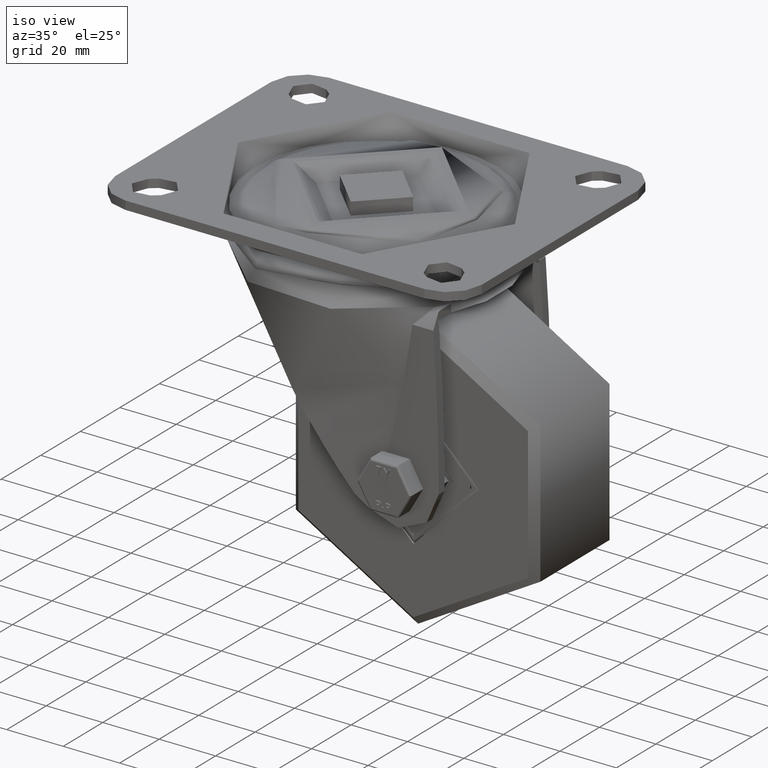
[diagram: clean part render]
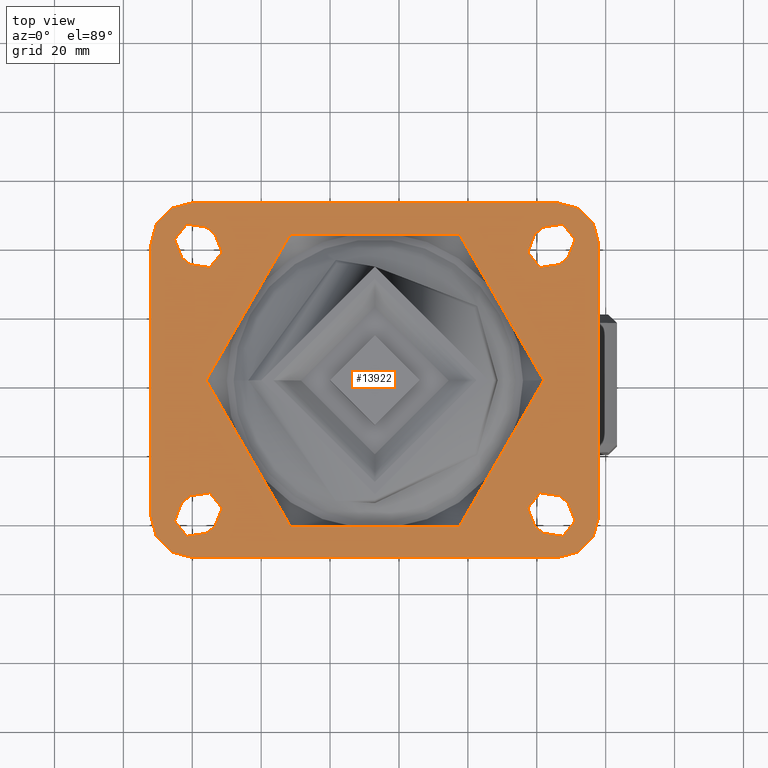
[diagram: tour spotlight — one face highlighted and labeled with its STEP entity id]
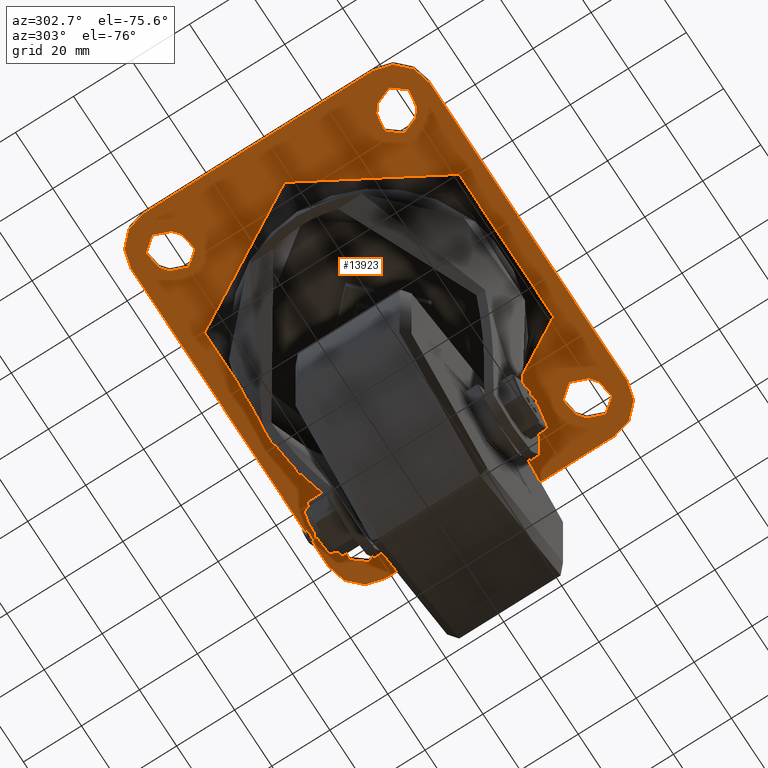
[diagram: tour spotlight — one face highlighted and labeled with its STEP entity id]
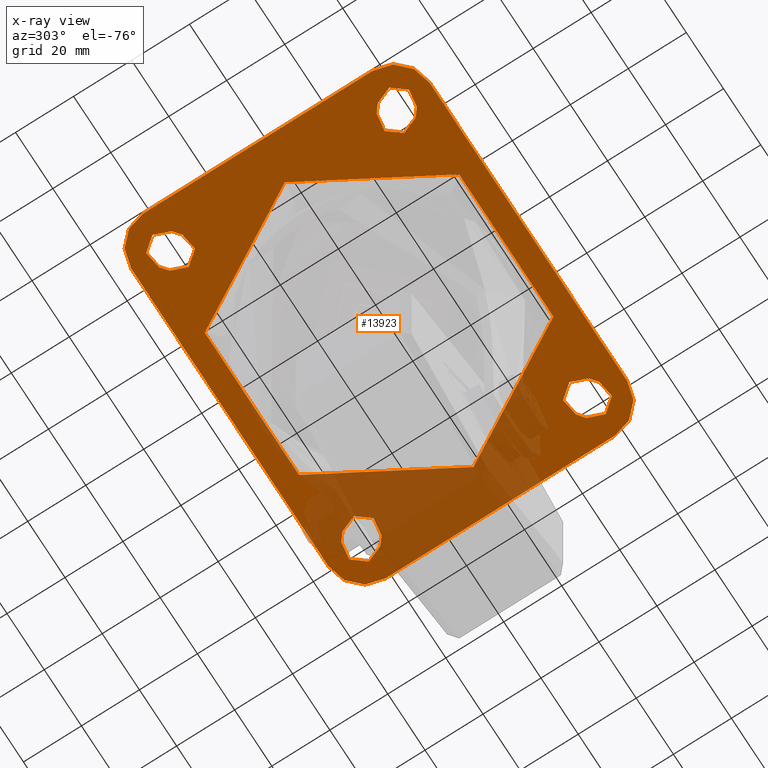
[diagram: x-ray of the same camera — body ghosted, this tour face saturated]
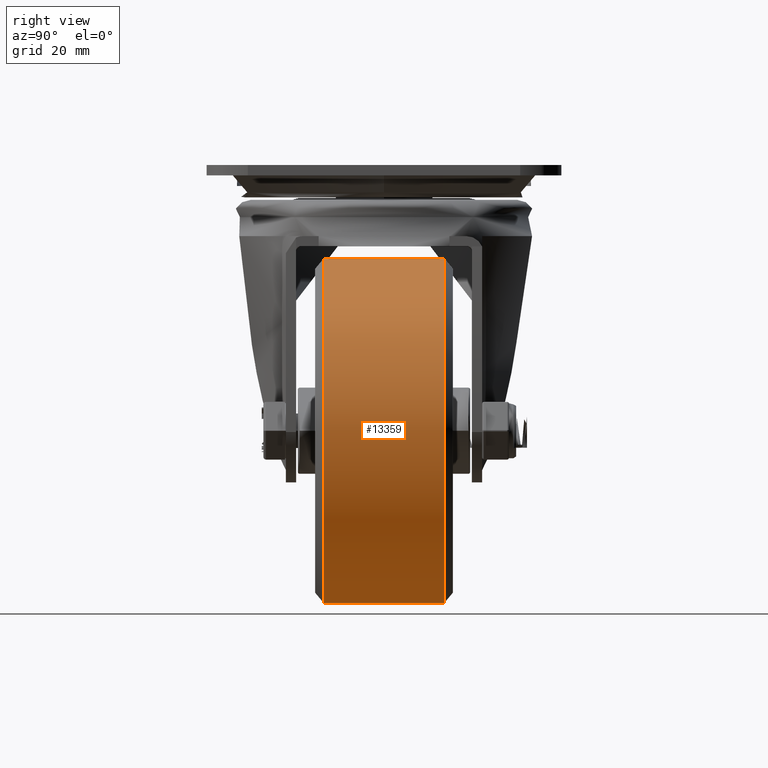
[diagram: tour spotlight — one face highlighted and labeled with its STEP entity id]
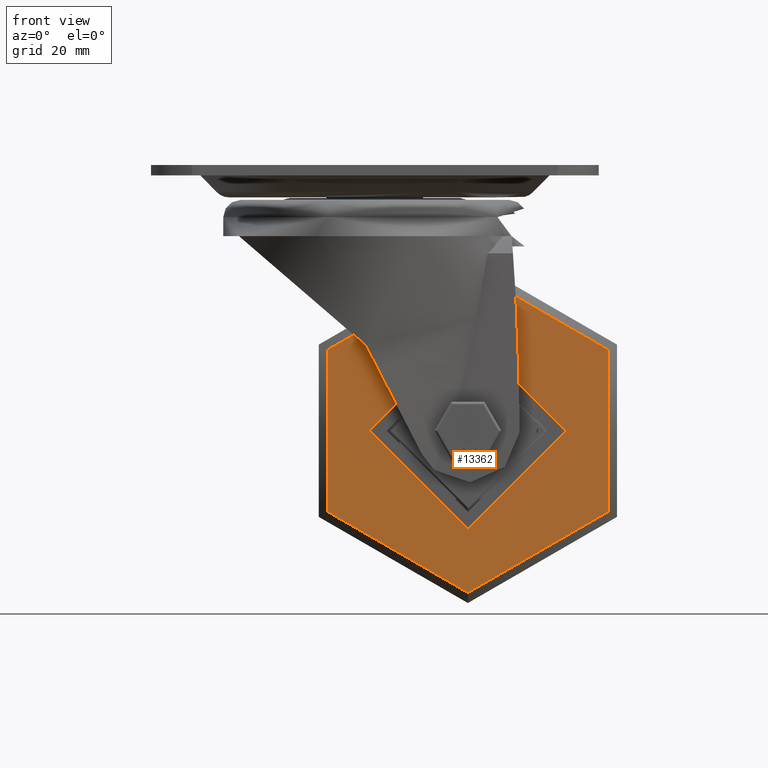
[diagram: tour spotlight — one face highlighted and labeled with its STEP entity id]
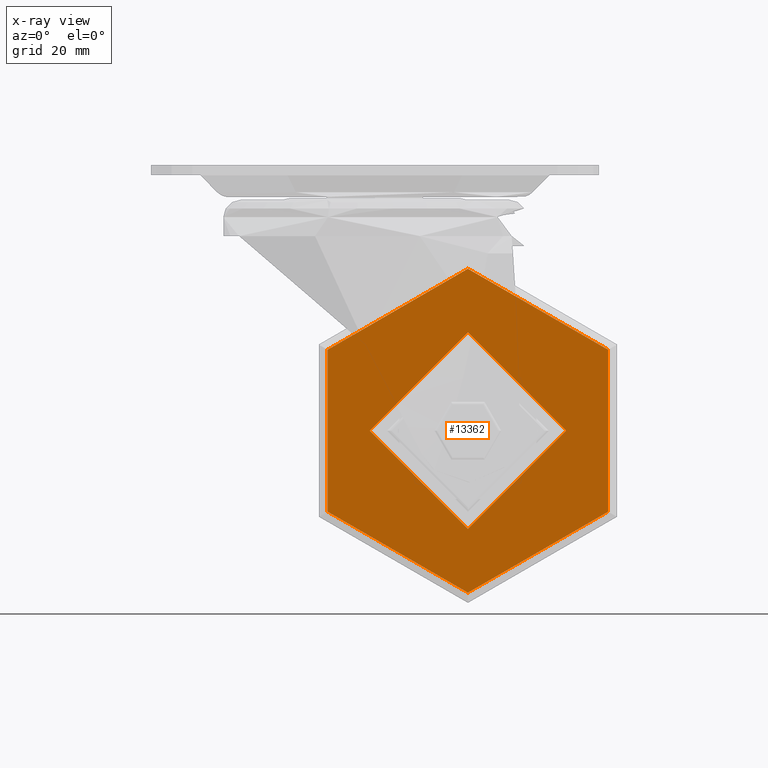
[diagram: x-ray of the same camera — body ghosted, this tour face saturated]
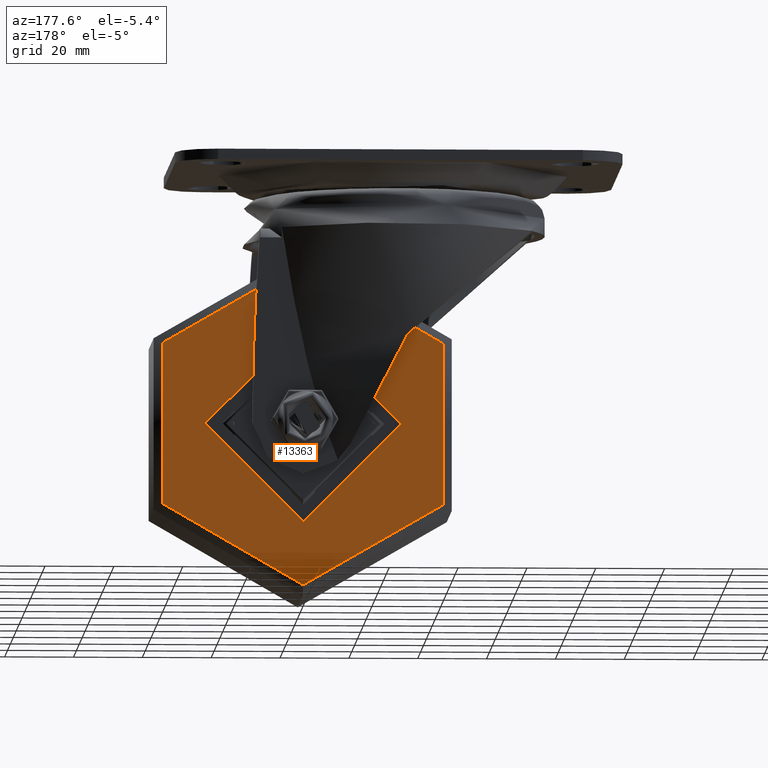
[diagram: tour spotlight — one face highlighted and labeled with its STEP entity id]
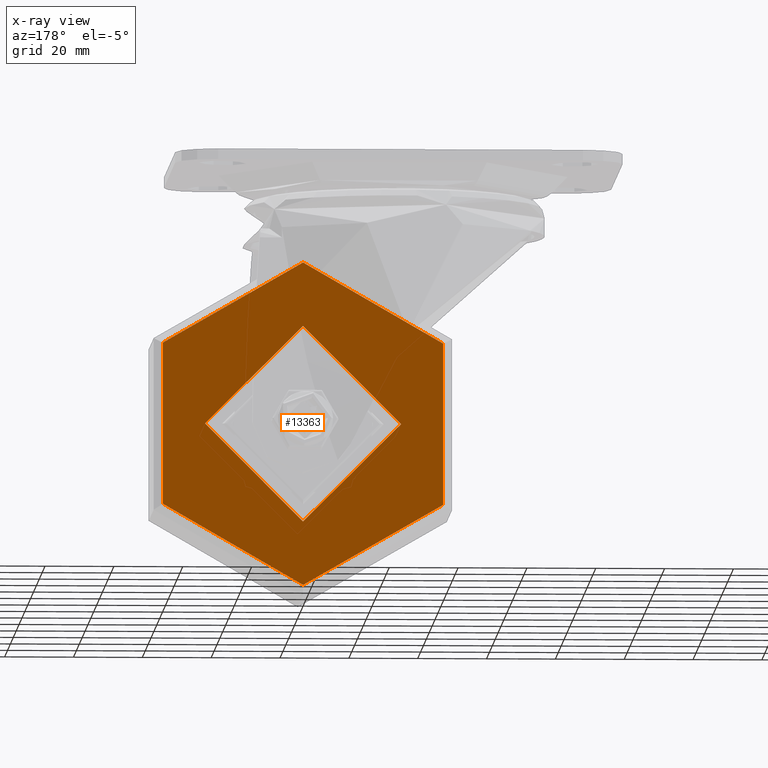
[diagram: x-ray of the same camera — body ghosted, this tour face saturated]
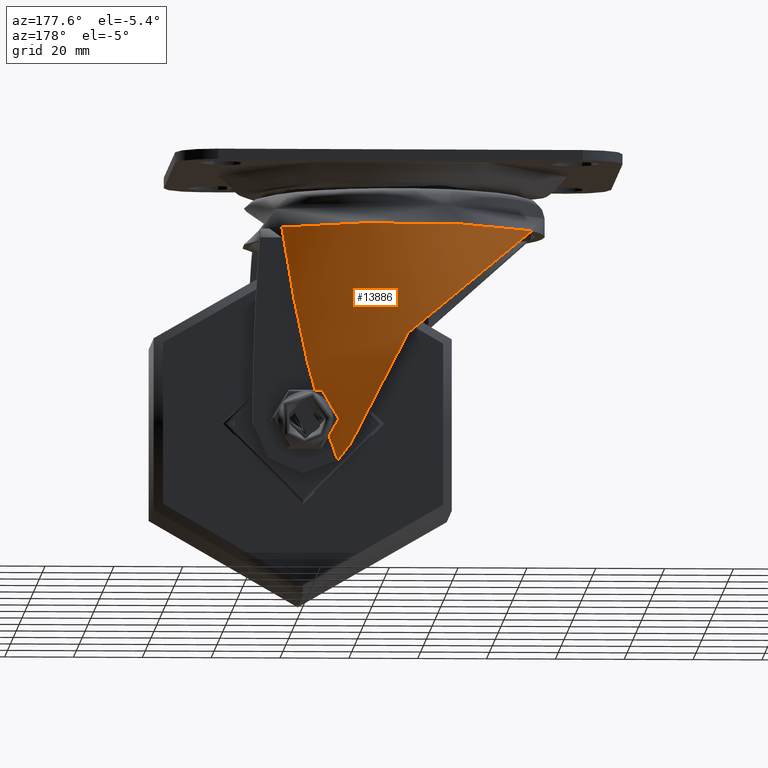
[diagram: tour spotlight — one face highlighted and labeled with its STEP entity id]
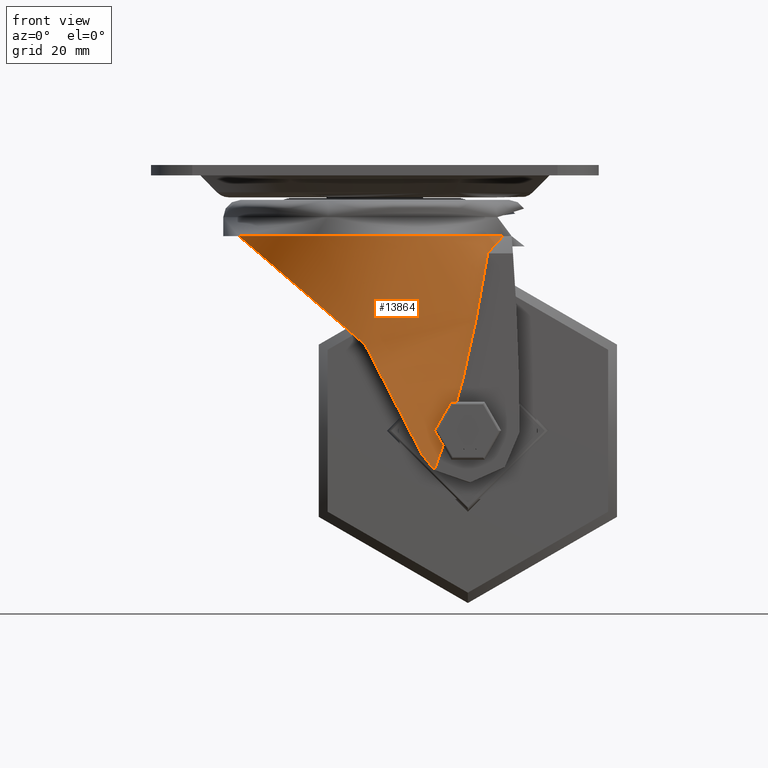
[diagram: tour spotlight — one face highlighted and labeled with its STEP entity id]
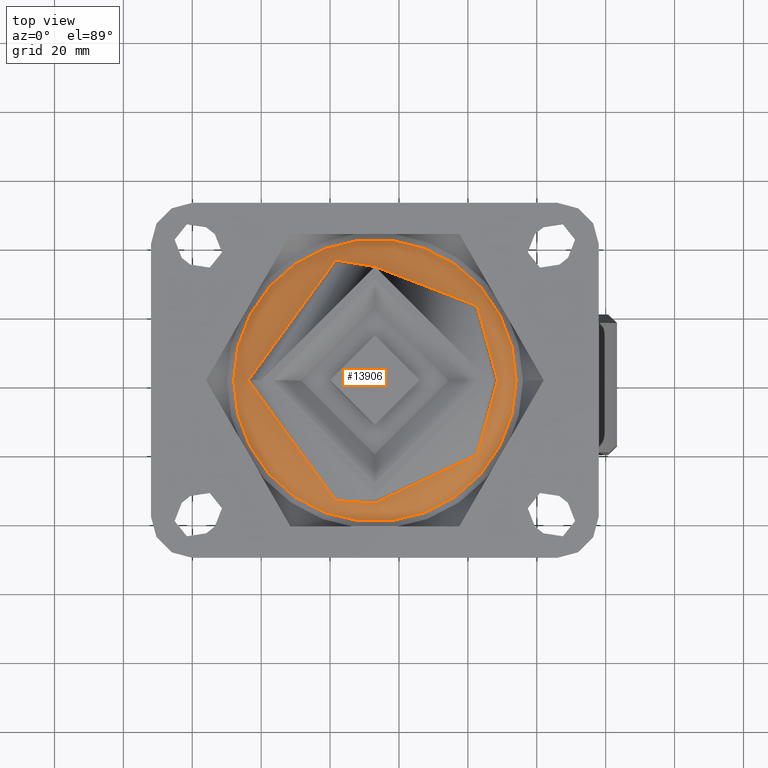
[diagram: tour spotlight — one face highlighted and labeled with its STEP entity id]
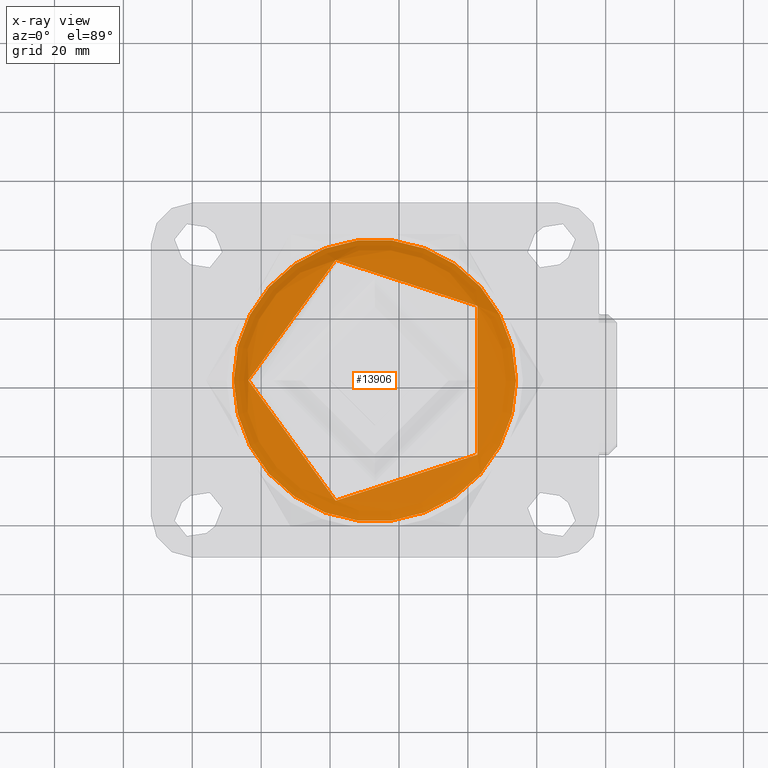
[diagram: x-ray of the same camera — body ghosted, this tour face saturated]
A machine part: a face-by-face anatomy tour. The part has 1270 B-rep faces; the first image is the clean iso view, then the 8 largest visible faces are spotlighted one at a time (largest first), each with its STEP entity span.

Face 1 — top view, entity #13922. In plain terms, the highlighted planar face has unit normal (0, -0, -1).
Definition (entity closure, byte-faithful):
#1149=FACE_BOUND('',#3136,.T.);
#1150=FACE_BOUND('',#3137,.T.);
#1151=FACE_BOUND('',#3138,.T.);
#1152=FACE_BOUND('',#3139,.T.);
#1153=FACE_BOUND('',#3140,.T.);
#1443=PLANE('',#15079);
#2281=FACE_OUTER_BOUND('',#3135,.T.);
#3135=EDGE_LOOP('',(#12268,#12269,#12270,#12271,#12272,#12273,#12274,#12275));
#3136=EDGE_LOOP('',(#12276));
#3137=EDGE_LOOP('',(#12277,#12278,#12279,#12280));
#3138=EDGE_LOOP('',(#12281,#12282,#12283,#12284));
#3139=EDGE_LOOP('',(#12285,#12286,#12287,#12288));
#3140=EDGE_LOOP('',(#12289,#12290,#12291,#12292));
#4159=LINE('',#25732,#5181);
#4161=LINE('',#25740,#5183);
#4162=LINE('',#25745,#5184);
#4163=LINE('',#25749,#5185);
#4164=LINE('',#25751,#5186);
#4165=LINE('',#25752,#5187);
#4166=LINE('',#25753,#5188);
#4167=LINE('',#25754,#5189);
#4168=LINE('',#25755,#5190);
#4169=LINE('',#25756,#5191);
#4170=LINE('',#25757,#5192);
#4171=LINE('',#25758,#5193);
#5181=VECTOR('',#17715,1.);
#5183=VECTOR('',#17725,1.);
#5184=VECTOR('',#17730,1.);
#5185=VECTOR('',#17733,1.);
#5186=VECTOR('',#17736,1.);
#5187=VECTOR('',#17737,1.);
#5188=VECTOR('',#17738,1.);
#5189=VECTOR('',#17739,1.);
#5190=VECTOR('',#17740,1.);
#5191=VECTOR('',#17741,1.);
#5192=VECTOR('',#17742,1.);
#5193=VECTOR('',#17743,1.);
#5719=CIRCLE('',#15002,5.70000000000001);
#5720=CIRCLE('',#15004,5.70000000000001);
#5722=CIRCLE('',#15007,5.70000000000001);
#5725=CIRCLE('',#15011,5.7);
#5727=CIRCLE('',#15014,5.7);
#5728=CIRCLE('',#15016,5.70000000000001);
#5731=CIRCLE('',#15020,5.70000000000001);
#5732=CIRCLE('',#15022,5.70000000000001);
#5749=CIRCLE('',#15045,49.0136280475669);
#5769=CIRCLE('',#15080,12.);
#5770=CIRCLE('',#15081,12.);
#5771=CIRCLE('',#15082,12.);
#5772=CIRCLE('',#15083,12.);
#6837=VERTEX_POINT('',#25495);
#6838=VERTEX_POINT('',#25497);
#6839=VERTEX_POINT('',#25501);
#6840=VERTEX_POINT('',#25502);
#6843=VERTEX_POINT('',#25510);
#6844=VERTEX_POINT('',#25511);
#6849=VERTEX_POINT('',#25522);
#6850=VERTEX_POINT('',#25524);
#6853=VERTEX_POINT('',#25531);
#6854=VERTEX_POINT('',#25533);
#6855=VERTEX_POINT('',#25537);
#6856=VERTEX_POINT('',#25538);
#6861=VERTEX_POINT('',#25549);
#6862=VERTEX_POINT('',#25551);
#6863=VERTEX_POINT('',#25555);
#6864=VERTEX_POINT('',#25556);
#6877=VERTEX_POINT('',#25622);
#6894=VERTEX_POINT('',#25729);
#6895=VERTEX_POINT('',#25731);
#6896=VERTEX_POINT('',#25738);
#6897=VERTEX_POINT('',#25739);
#6898=VERTEX_POINT('',#25742);
#6899=VERTEX_POINT('',#25744);
#6900=VERTEX_POINT('',#25746);
#6901=VERTEX_POINT('',#25748);
#8664=EDGE_CURVE('',#6838,#6837,#5719,.T.);
#8666=EDGE_CURVE('',#6839,#6840,#5720,.T.);
#8670=EDGE_CURVE('',#6843,#6844,#5722,.T.);
#8676=EDGE_CURVE('',#6850,#6849,#5725,.T.);
#8680=EDGE_CURVE('',#6853,#6854,#5727,.T.);
#8682=EDGE_CURVE('',#6855,#6856,#5728,.T.);
#8688=EDGE_CURVE('',#6861,#6862,#5731,.T.);
#8690=EDGE_CURVE('',#6863,#6864,#5732,.T.);
#8711=EDGE_CURVE('',#6877,#6877,#5749,.T.);
#8736=EDGE_CURVE('',#6895,#6894,#4159,.T.);
#8738=EDGE_CURVE('',#6896,#6897,#4161,.T.);
#8739=EDGE_CURVE('',#6896,#6895,#5769,.T.);
#8740=EDGE_CURVE('',#6894,#6898,#5770,.T.);
#8741=EDGE_CURVE('',#6899,#6898,#4162,.T.);
#8742=EDGE_CURVE('',#6900,#6899,#5771,.T.);
#8743=EDGE_CURVE('',#6901,#6900,#4163,.T.);
#8744=EDGE_CURVE('',#6897,#6901,#5772,.T.);
#8745=EDGE_CURVE('',#6864,#6861,#4164,.T.);
#8746=EDGE_CURVE('',#6862,#6863,#4165,.T.);
#8747=EDGE_CURVE('',#6854,#6855,#4166,.T.);
#8748=EDGE_CURVE('',#6856,#6853,#4167,.T.);
#8749=EDGE_CURVE('',#6837,#6839,#4168,.T.);
#8750=EDGE_CURVE('',#6840,#6838,#4169,.T.);
#8751=EDGE_CURVE('',#6844,#6850,#4170,.T.);
#8752=EDGE_CURVE('',#6849,#6843,#4171,.T.);
#12268=ORIENTED_EDGE('',*,*,#8738,.F.);
#12269=ORIENTED_EDGE('',*,*,#8739,.T.);
#12270=ORIENTED_EDGE('',*,*,#8736,.T.);
#12271=ORIENTED_EDGE('',*,*,#8740,.T.);
#12272=ORIENTED_EDGE('',*,*,#8741,.F.);
#12273=ORIENTED_EDGE('',*,*,#8742,.F.);
#12274=ORIENTED_EDGE('',*,*,#8743,.F.);
#12275=ORIENTED_EDGE('',*,*,#8744,.F.);
#12276=ORIENTED_EDGE('',*,*,#8711,.F.);
#12277=ORIENTED_EDGE('',*,*,#8688,.F.);
#12278=ORIENTED_EDGE('',*,*,#8745,.F.);
#12279=ORIENTED_EDGE('',*,*,#8690,.F.);
#12280=ORIENTED_EDGE('',*,*,#8746,.F.);
#12281=ORIENTED_EDGE('',*,*,#8682,.F.);
#12282=ORIENTED_EDGE('',*,*,#8747,.F.);
#12283=ORIENTED_EDGE('',*,*,#8680,.F.);
#12284=ORIENTED_EDGE('',*,*,#8748,.F.);
#12285=ORIENTED_EDGE('',*,*,#8664,.T.);
#12286=ORIENTED_EDGE('',*,*,#8749,.T.);
#12287=ORIENTED_EDGE('',*,*,#8666,.T.);
#12288=ORIENTED_EDGE('',*,*,#8750,.T.);
#12289=ORIENTED_EDGE('',*,*,#8670,.T.);
#12290=ORIENTED_EDGE('',*,*,#8751,.T.);
#12291=ORIENTED_EDGE('',*,*,#8676,.T.);
#12292=ORIENTED_EDGE('',*,*,#8752,.T.);
#13922=ADVANCED_FACE('',(#2281,#1149,#1150,#1151,#1152,#1153),#1443,.F.);
#15002=AXIS2_PLACEMENT_3D('',#25498,#17545,#17546);
#15004=AXIS2_PLACEMENT_3D('',#25503,#17550,#17551);
#15007=AXIS2_PLACEMENT_3D('',#25512,#17558,#17559);
#15011=AXIS2_PLACEMENT_3D('',#25525,#17569,#17570);
#15014=AXIS2_PLACEMENT_3D('',#25534,#17577,#17578);
#15016=AXIS2_PLACEMENT_3D('',#25539,#17582,#17583);
#15020=AXIS2_PLACEMENT_3D('',#25552,#17593,#17594);
#15022=AXIS2_PLACEMENT_3D('',#25557,#17598,#17599);
#15045=AXIS2_PLACEMENT_3D('',#25624,#17648,#17649);
#15079=AXIS2_PLACEMENT_3D('',#25737,#17723,#17724);
#15080=AXIS2_PLACEMENT_3D('',#25741,#17726,#17727);
#15081=AXIS2_PLACEMENT_3D('',#25743,#17728,#17729);
#15082=AXIS2_PLACEMENT_3D('',#25747,#17731,#17732);
#15083=AXIS2_PLACEMENT_3D('',#25750,#17734,#17735);
#17545=DIRECTION('center_axis',(0.,0.,-1.));
#17546=DIRECTION('ref_axis',(1.,0.,0.));
#17550=DIRECTION('center_axis',(0.,0.,-1.));
#17551=DIRECTION('ref_axis',(1.,0.,0.));
#17558=DIRECTION('center_axis',(0.,0.,-1.));
#17559=DIRECTION('ref_axis',(1.,0.,0.));
#17569=DIRECTION('center_axis',(0.,0.,-1.));
#17570=DIRECTION('ref_axis',(1.,0.,0.));
#17577=DIRECTION('center_axis',(0.,0.,1.));
#17578=DIRECTION('ref_axis',(1.,0.,0.));
#17582=DIRECTION('center_axis',(0.,0.,1.));
#17583=DIRECTION('ref_axis',(1.,0.,0.));
#17593=DIRECTION('center_axis',(0.,0.,1.));
#17594=DIRECTION('ref_axis',(1.,0.,0.));
#17598=DIRECTION('center_axis',(0.,0.,1.));
#17599=DIRECTION('ref_axis',(1.,0.,0.));
#17648=DIRECTION('center_axis',(0.,0.,1.));
#17649=DIRECTION('ref_axis',(-1.,0.,0.));
#17715=DIRECTION('',(1.,-2.09476042382105E-15,0.));
#17723=DIRECTION('center_axis',(0.,0.,-1.));
#17724=DIRECTION('ref_axis',(0.,-1.,0.));
#17725=DIRECTION('',(0.,1.,0.));
#17726=DIRECTION('center_axis',(0.,0.,1.));
#17727=DIRECTION('ref_axis',(1.,0.,0.));
#17728=DIRECTION('center_axis',(0.,0.,1.));
#17729=DIRECTION('ref_axis',(1.,0.,0.));
#17730=DIRECTION('',(0.,-1.,0.));
#17731=DIRECTION('center_axis',(0.,0.,-1.));
#17732=DIRECTION('ref_axis',(1.,0.,0.));
#17733=DIRECTION('',(1.,2.09476042382105E-15,0.));
#17734=DIRECTION('center_axis',(0.,0.,-1.));
#17735=DIRECTION('ref_axis',(1.,0.,0.));
#17736=DIRECTION('',(-0.78086880944303,-0.624695047554425,0.));
#17737=DIRECTION('',(0.78086880944303,0.624695047554425,0.));
#17738=DIRECTION('',(0.78086880944303,-0.624695047554424,0.));
#17739=DIRECTION('',(-0.780868809443027,0.624695047554429,0.));
#17740=DIRECTION('',(0.78086880944303,-0.624695047554425,0.));
#17741=DIRECTION('',(-0.78086880944303,0.624695047554425,0.));
#17742=DIRECTION('',(-0.780868809443027,-0.624695047554429,0.));
#17743=DIRECTION('',(0.78086880944303,0.624695047554424,0.));
#25495=CARTESIAN_POINT('',(-27.5359321693506,161.729141520179,0.));
#25497=CARTESIAN_POINT('',(-34.6574557114712,152.827237092529,0.));
#25498=CARTESIAN_POINT('Origin',(-31.0966939404109,157.278189306354,0.));
#25501=CARTESIAN_POINT('',(-25.0359321693506,159.729141520179,0.));
#25502=CARTESIAN_POINT('',(-32.1574557114712,150.827237092529,0.));
#25503=CARTESIAN_POINT('Origin',(-28.5966939404109,155.278189306354,0.));
#25510=CARTESIAN_POINT('',(-134.657455711471,161.729141520179,0.));
#25511=CARTESIAN_POINT('',(-127.535932169351,152.827237092529,0.));
#25512=CARTESIAN_POINT('Origin',(-131.096693940411,157.278189306354,0.));
#25522=CARTESIAN_POINT('',(-137.157455711471,159.729141520179,0.));
#25524=CARTESIAN_POINT('',(-130.035932169351,150.827237092529,0.));
#25525=CARTESIAN_POINT('Origin',(-133.596693940411,155.278189306354,0.));
#25531=CARTESIAN_POINT('',(-130.035932169351,239.729141520179,0.));
#25533=CARTESIAN_POINT('',(-137.157455711471,230.827237092529,0.));
#25534=CARTESIAN_POINT('Origin',(-133.596693940411,235.278189306354,0.));
#25537=CARTESIAN_POINT('',(-134.657455711471,228.827237092529,0.));
#25538=CARTESIAN_POINT('',(-127.535932169351,237.729141520179,0.));
#25539=CARTESIAN_POINT('Origin',(-131.096693940411,233.278189306354,0.));
#25549=CARTESIAN_POINT('',(-34.6574557114712,237.729141520179,0.));
#25551=CARTESIAN_POINT('',(-27.5359321693506,228.827237092528,0.));
#25552=CARTESIAN_POINT('Origin',(-31.0966939404109,233.278189306354,0.));
#25555=CARTESIAN_POINT('',(-25.0359321693506,230.827237092528,0.));
#25556=CARTESIAN_POINT('',(-32.1574557114712,239.729141520179,0.));
#25557=CARTESIAN_POINT('Origin',(-28.5966939404109,235.278189306354,0.));
#25622=CARTESIAN_POINT('',(-130.110321987978,195.278189306354,0.));
#25624=CARTESIAN_POINT('Origin',(-81.096693940411,195.278189306354,0.));
#25729=CARTESIAN_POINT('',(-28.0966939404109,143.778189306354,0.));
#25731=CARTESIAN_POINT('',(-134.096693940411,143.778189306354,0.));
#25732=CARTESIAN_POINT('',(-81.096693940411,143.778189306354,0.));
#25737=CARTESIAN_POINT('Origin',(-130.110321987978,195.278189306354,-1.52655665885899E-16));
#25738=CARTESIAN_POINT('',(-146.096693940411,155.778189306354,0.));
#25739=CARTESIAN_POINT('',(-146.096693940411,234.778189306354,0.));
#25740=CARTESIAN_POINT('',(-146.096693940411,195.278189306354,0.));
#25741=CARTESIAN_POINT('Origin',(-134.096693940411,155.778189306354,0.));
#25742=CARTESIAN_POINT('',(-16.0966939404109,155.778189306354,0.));
#25743=CARTESIAN_POINT('Origin',(-28.0966939404109,155.778189306354,0.));
#25744=CARTESIAN_POINT('',(-16.0966939404109,234.778189306354,0.));
#25745=CARTESIAN_POINT('',(-16.0966939404109,234.778189306354,0.));
#25746=CARTESIAN_POINT('',(-28.0966939404109,246.778189306354,0.));
#25747=CARTESIAN_POINT('Origin',(-28.0966939404109,234.778189306354,0.));
#25748=CARTESIAN_POINT('',(-134.096693940411,246.778189306354,0.));
#25749=CARTESIAN_POINT('',(-81.096693940411,246.778189306354,0.));
#25750=CARTESIAN_POINT('Origin',(-134.096693940411,234.778189306354,0.));
#25751=CARTESIAN_POINT('',(-32.1574557114711,239.729141520179,0.));
#25752=CARTESIAN_POINT('',(-27.5359321693506,228.827237092528,0.));
#25753=CARTESIAN_POINT('',(-137.157455711471,230.827237092528,0.));
#25754=CARTESIAN_POINT('',(-127.535932169351,237.729141520179,0.));
#25755=CARTESIAN_POINT('',(-27.5359321693506,161.729141520179,0.));
#25756=CARTESIAN_POINT('',(-32.1574557114711,150.827237092529,0.));
#25757=CARTESIAN_POINT('',(-127.535932169351,152.827237092529,0.));
#25758=CARTESIAN_POINT('',(-137.157455711471,159.729141520179,0.));

Face 2 — auxiliary view, entity #13923. An x-ray twin of the same camera follows (body ghosted, this face saturated) — the face is partly hidden behind the body. In plain terms, the highlighted planar face has unit normal (-0, 0, 1).
Definition (entity closure, byte-faithful):
#1154=FACE_BOUND('',#3142,.T.);
#1155=FACE_BOUND('',#3143,.T.);
#1156=FACE_BOUND('',#3144,.T.);
#1157=FACE_BOUND('',#3145,.T.);
#1158=FACE_BOUND('',#3146,.T.);
#1444=PLANE('',#15084);
#2282=FACE_OUTER_BOUND('',#3141,.T.);
#3141=EDGE_LOOP('',(#12293,#12294,#12295,#12296,#12297,#12298,#12299,#12300));
#3142=EDGE_LOOP('',(#12301));
#3143=EDGE_LOOP('',(#12302,#12303,#12304,#12305));
#3144=EDGE_LOOP('',(#12306,#12307,#12308,#12309));
#3145=EDGE_LOOP('',(#12310,#12311,#12312,#12313));
#3146=EDGE_LOOP('',(#12314,#12315,#12316,#12317));
#4157=LINE('',#25728,#5179);
#4172=LINE('',#25763,#5194);
#4173=LINE('',#25767,#5195);
#4174=LINE('',#25771,#5196);
#4175=LINE('',#25773,#5197);
#4176=LINE('',#25774,#5198);
#4177=LINE('',#25775,#5199);
#4178=LINE('',#25776,#5200);
#4179=LINE('',#25777,#5201);
#4180=LINE('',#25778,#5202);
#4181=LINE('',#25779,#5203);
#4182=LINE('',#25780,#5204);
#5179=VECTOR('',#17713,1.);
#5194=VECTOR('',#17748,1.);
#5195=VECTOR('',#17751,1.);
#5196=VECTOR('',#17754,1.);
#5197=VECTOR('',#17757,1.);
#5198=VECTOR('',#17758,1.);
#5199=VECTOR('',#17759,1.);
#5200=VECTOR('',#17760,1.);
#5201=VECTOR('',#17761,1.);
#5202=VECTOR('',#17762,1.);
#5203=VECTOR('',#17763,1.);
#5204=VECTOR('',#17764,1.);
#5718=CIRCLE('',#15001,5.70000000000001);
#5721=CIRCLE('',#15005,5.70000000000001);
#5723=CIRCLE('',#15008,5.70000000000001);
#5724=CIRCLE('',#15010,5.7);
#5726=CIRCLE('',#15013,5.7);
#5729=CIRCLE('',#15017,5.70000000000001);
#5730=CIRCLE('',#15019,5.70000000000001);
#5733=CIRCLE('',#15023,5.70000000000001);
#5747=CIRCLE('',#15042,50.6900884644749);
#5773=CIRCLE('',#15085,12.);
#5774=CIRCLE('',#15086,12.);
#5775=CIRCLE('',#15087,12.);
#5776=CIRCLE('',#15088,12.);
#6835=VERTEX_POINT('',#25492);
#6836=VERTEX_POINT('',#25493);
#6841=VERTEX_POINT('',#25504);
#6842=VERTEX_POINT('',#25506);
#6845=VERTEX_POINT('',#25513);
#6846=VERTEX_POINT('',#25515);
#6847=VERTEX_POINT('',#25519);
#6848=VERTEX_POINT('',#25520);
#6851=VERTEX_POINT('',#25528);
#6852=VERTEX_POINT('',#25529);
#6857=VERTEX_POINT('',#25540);
#6858=VERTEX_POINT('',#25542);
#6859=VERTEX_POINT('',#25546);
#6860=VERTEX_POINT('',#25547);
#6865=VERTEX_POINT('',#25558);
#6866=VERTEX_POINT('',#25560);
#6875=VERTEX_POINT('',#25616);
#6892=VERTEX_POINT('',#25726);
#6893=VERTEX_POINT('',#25727);
#6902=VERTEX_POINT('',#25760);
#6903=VERTEX_POINT('',#25762);
#6904=VERTEX_POINT('',#25764);
#6905=VERTEX_POINT('',#25766);
#6906=VERTEX_POINT('',#25768);
#6907=VERTEX_POINT('',#25770);
#8662=EDGE_CURVE('',#6835,#6836,#5718,.T.);
#8668=EDGE_CURVE('',#6841,#6842,#5721,.T.);
#8672=EDGE_CURVE('',#6845,#6846,#5723,.T.);
#8674=EDGE_CURVE('',#6847,#6848,#5724,.T.);
#8678=EDGE_CURVE('',#6851,#6852,#5726,.T.);
#8684=EDGE_CURVE('',#6858,#6857,#5729,.T.);
#8686=EDGE_CURVE('',#6859,#6860,#5730,.T.);
#8692=EDGE_CURVE('',#6866,#6865,#5733,.T.);
#8707=EDGE_CURVE('',#6875,#6875,#5747,.T.);
#8734=EDGE_CURVE('',#6892,#6893,#4157,.T.);
#8753=EDGE_CURVE('',#6902,#6892,#5773,.T.);
#8754=EDGE_CURVE('',#6902,#6903,#4172,.T.);
#8755=EDGE_CURVE('',#6903,#6904,#5774,.T.);
#8756=EDGE_CURVE('',#6904,#6905,#4173,.T.);
#8757=EDGE_CURVE('',#6905,#6906,#5775,.T.);
#8758=EDGE_CURVE('',#6906,#6907,#4174,.T.);
#8759=EDGE_CURVE('',#6893,#6907,#5776,.T.);
#8760=EDGE_CURVE('',#6860,#6866,#4175,.T.);
#8761=EDGE_CURVE('',#6865,#6859,#4176,.T.);
#8762=EDGE_CURVE('',#6857,#6851,#4177,.T.);
#8763=EDGE_CURVE('',#6852,#6858,#4178,.T.);
#8764=EDGE_CURVE('',#6842,#6835,#4179,.T.);
#8765=EDGE_CURVE('',#6836,#6841,#4180,.T.);
#8766=EDGE_CURVE('',#6848,#6845,#4181,.T.);
#8767=EDGE_CURVE('',#6846,#6847,#4182,.T.);
#12293=ORIENTED_EDGE('',*,*,#8753,.F.);
#12294=ORIENTED_EDGE('',*,*,#8754,.T.);
#12295=ORIENTED_EDGE('',*,*,#8755,.T.);
#12296=ORIENTED_EDGE('',*,*,#8756,.T.);
#12297=ORIENTED_EDGE('',*,*,#8757,.T.);
#12298=ORIENTED_EDGE('',*,*,#8758,.T.);
#12299=ORIENTED_EDGE('',*,*,#8759,.F.);
#12300=ORIENTED_EDGE('',*,*,#8734,.F.);
#12301=ORIENTED_EDGE('',*,*,#8707,.T.);
#12302=ORIENTED_EDGE('',*,*,#8686,.T.);
#12303=ORIENTED_EDGE('',*,*,#8760,.T.);
#12304=ORIENTED_EDGE('',*,*,#8692,.T.);
#12305=ORIENTED_EDGE('',*,*,#8761,.T.);
#12306=ORIENTED_EDGE('',*,*,#8684,.T.);
#12307=ORIENTED_EDGE('',*,*,#8762,.T.);
#12308=ORIENTED_EDGE('',*,*,#8678,.T.);
#12309=ORIENTED_EDGE('',*,*,#8763,.T.);
#12310=ORIENTED_EDGE('',*,*,#8662,.F.);
#12311=ORIENTED_EDGE('',*,*,#8764,.F.);
#12312=ORIENTED_EDGE('',*,*,#8668,.F.);
#12313=ORIENTED_EDGE('',*,*,#8765,.F.);
#12314=ORIENTED_EDGE('',*,*,#8672,.F.);
#12315=ORIENTED_EDGE('',*,*,#8766,.F.);
#12316=ORIENTED_EDGE('',*,*,#8674,.F.);
#12317=ORIENTED_EDGE('',*,*,#8767,.F.);
#13923=ADVANCED_FACE('',(#2282,#1154,#1155,#1156,#1157,#1158),#1444,.F.);
#15001=AXIS2_PLACEMENT_3D('',#25494,#17542,#17543);
#15005=AXIS2_PLACEMENT_3D('',#25507,#17553,#17554);
#15008=AXIS2_PLACEMENT_3D('',#25516,#17561,#17562);
#15010=AXIS2_PLACEMENT_3D('',#25521,#17566,#17567);
#15013=AXIS2_PLACEMENT_3D('',#25530,#17574,#17575);
#15017=AXIS2_PLACEMENT_3D('',#25543,#17585,#17586);
#15019=AXIS2_PLACEMENT_3D('',#25548,#17590,#17591);
#15023=AXIS2_PLACEMENT_3D('',#25561,#17601,#17602);
#15042=AXIS2_PLACEMENT_3D('',#25617,#17640,#17641);
#15084=AXIS2_PLACEMENT_3D('',#25759,#17744,#17745);
#15085=AXIS2_PLACEMENT_3D('',#25761,#17746,#17747);
#15086=AXIS2_PLACEMENT_3D('',#25765,#17749,#17750);
#15087=AXIS2_PLACEMENT_3D('',#25769,#17752,#17753);
#15088=AXIS2_PLACEMENT_3D('',#25772,#17755,#17756);
#17542=DIRECTION('center_axis',(0.,0.,-1.));
#17543=DIRECTION('ref_axis',(1.,0.,0.));
#17553=DIRECTION('center_axis',(0.,0.,-1.));
#17554=DIRECTION('ref_axis',(1.,0.,0.));
#17561=DIRECTION('center_axis',(0.,0.,-1.));
#17562=DIRECTION('ref_axis',(1.,0.,0.));
#17566=DIRECTION('center_axis',(0.,0.,-1.));
#17567=DIRECTION('ref_axis',(1.,0.,0.));
#17574=DIRECTION('center_axis',(0.,0.,1.));
#17575=DIRECTION('ref_axis',(1.,0.,0.));
#17585=DIRECTION('center_axis',(0.,0.,1.));
#17586=DIRECTION('ref_axis',(1.,0.,0.));
#17590=DIRECTION('center_axis',(0.,0.,1.));
#17591=DIRECTION('ref_axis',(1.,0.,0.));
#17601=DIRECTION('center_axis',(0.,0.,1.));
#17602=DIRECTION('ref_axis',(1.,0.,0.));
#17640=DIRECTION('center_axis',(0.,0.,1.));
#17641=DIRECTION('ref_axis',(1.,0.,0.));
#17713=DIRECTION('',(1.,-2.09476042382105E-15,0.));
#17744=DIRECTION('center_axis',(0.,0.,1.));
#17745=DIRECTION('ref_axis',(1.,0.,0.));
#17746=DIRECTION('center_axis',(0.,0.,1.));
#17747=DIRECTION('ref_axis',(1.,0.,0.));
#17748=DIRECTION('',(0.,1.,0.));
#17749=DIRECTION('center_axis',(0.,0.,-1.));
#17750=DIRECTION('ref_axis',(1.,0.,0.));
#17751=DIRECTION('',(1.,2.09476042382105E-15,0.));
#17752=DIRECTION('center_axis',(0.,0.,-1.));
#17753=DIRECTION('ref_axis',(1.,0.,0.));
#17754=DIRECTION('',(0.,-1.,0.));
#17755=DIRECTION('center_axis',(0.,0.,1.));
#17756=DIRECTION('ref_axis',(1.,0.,0.));
#17757=DIRECTION('',(0.78086880944303,0.624695047554425,0.));
#17758=DIRECTION('',(-0.78086880944303,-0.624695047554425,0.));
#17759=DIRECTION('',(-0.780868809443027,0.624695047554429,0.));
#17760=DIRECTION('',(0.780868809443031,-0.624695047554424,0.));
#17761=DIRECTION('',(-0.78086880944303,0.624695047554425,0.));
#17762=DIRECTION('',(0.78086880944303,-0.624695047554425,0.));
#17763=DIRECTION('',(0.780868809443031,0.624695047554424,0.));
#17764=DIRECTION('',(-0.780868809443027,-0.624695047554429,0.));
#25492=CARTESIAN_POINT('',(-34.6574557114712,152.827237092529,-2.99999999999988));
#25493=CARTESIAN_POINT('',(-27.5359321693506,161.729141520179,-2.99999999999988));
#25494=CARTESIAN_POINT('Origin',(-31.0966939404109,157.278189306354,-2.99999999999988));
#25504=CARTESIAN_POINT('',(-25.0359321693506,159.729141520179,-2.99999999999988));
#25506=CARTESIAN_POINT('',(-32.1574557114712,150.827237092529,-2.99999999999988));
#25507=CARTESIAN_POINT('Origin',(-28.5966939404109,155.278189306354,-2.99999999999988));
#25513=CARTESIAN_POINT('',(-134.657455711471,161.729141520179,-2.99999999999988));
#25515=CARTESIAN_POINT('',(-127.535932169351,152.827237092529,-2.99999999999988));
#25516=CARTESIAN_POINT('Origin',(-131.096693940411,157.278189306354,-2.99999999999988));
#25519=CARTESIAN_POINT('',(-130.035932169351,150.827237092529,-2.99999999999988));
#25520=CARTESIAN_POINT('',(-137.157455711471,159.729141520179,-2.99999999999988));
#25521=CARTESIAN_POINT('Origin',(-133.596693940411,155.278189306354,-2.99999999999988));
#25528=CARTESIAN_POINT('',(-130.035932169351,239.729141520179,-2.99999999999988));
#25529=CARTESIAN_POINT('',(-137.157455711471,230.827237092529,-2.99999999999988));
#25530=CARTESIAN_POINT('Origin',(-133.596693940411,235.278189306354,-2.99999999999988));
#25540=CARTESIAN_POINT('',(-127.535932169351,237.729141520179,-2.99999999999988));
#25542=CARTESIAN_POINT('',(-134.657455711471,228.827237092529,-2.99999999999988));
#25543=CARTESIAN_POINT('Origin',(-131.096693940411,233.278189306354,-2.99999999999988));
#25546=CARTESIAN_POINT('',(-34.6574557114712,237.729141520179,-2.99999999999988));
#25547=CARTESIAN_POINT('',(-27.5359321693506,228.827237092528,-2.99999999999988));
#25548=CARTESIAN_POINT('Origin',(-31.0966939404109,233.278189306354,-2.99999999999988));
#25558=CARTESIAN_POINT('',(-32.1574557114712,239.729141520179,-2.99999999999988));
#25560=CARTESIAN_POINT('',(-25.0359321693506,230.827237092528,-2.99999999999988));
#25561=CARTESIAN_POINT('Origin',(-28.5966939404109,235.278189306354,-2.99999999999988));
#25616=CARTESIAN_POINT('',(-131.786782404886,195.278189306354,-2.99999999999988));
#25617=CARTESIAN_POINT('Origin',(-81.096693940411,195.278189306354,-2.99999999999988));
#25726=CARTESIAN_POINT('',(-134.096693940411,143.778189306354,-2.99999999999988));
#25727=CARTESIAN_POINT('',(-28.0966939404109,143.778189306354,-2.99999999999988));
#25728=CARTESIAN_POINT('',(-81.096693940411,143.778189306354,-2.99999999999988));
#25759=CARTESIAN_POINT('Origin',(-146.096693940411,195.278189306354,-2.99999999999988));
#25760=CARTESIAN_POINT('',(-146.096693940411,155.778189306354,-2.99999999999988));
#25761=CARTESIAN_POINT('Origin',(-134.096693940411,155.778189306354,-2.99999999999988));
#25762=CARTESIAN_POINT('',(-146.096693940411,234.778189306354,-2.99999999999988));
#25763=CARTESIAN_POINT('',(-146.096693940411,195.278189306354,-2.99999999999988));
#25764=CARTESIAN_POINT('',(-134.096693940411,246.778189306354,-2.99999999999988));
#25765=CARTESIAN_POINT('Origin',(-134.096693940411,234.778189306354,-2.99999999999988));
#25766=CARTESIAN_POINT('',(-28.0966939404109,246.778189306354,-2.99999999999988));
#25767=CARTESIAN_POINT('',(-146.096693940411,246.778189306354,-2.99999999999988));
#25768=CARTESIAN_POINT('',(-16.0966939404109,234.778189306354,-2.99999999999988));
#25769=CARTESIAN_POINT('Origin',(-28.0966939404109,234.778189306354,-2.99999999999988));
#25770=CARTESIAN_POINT('',(-16.0966939404109,155.778189306354,-2.99999999999988));
#25771=CARTESIAN_POINT('',(-16.0966939404109,195.278189306354,-2.99999999999988));
#25772=CARTESIAN_POINT('Origin',(-28.0966939404109,155.778189306354,-2.99999999999988));
#25773=CARTESIAN_POINT('',(-116.194468754716,157.900407824236,-2.99999999999988));
#25774=CARTESIAN_POINT('',(-123.315992296837,166.802312251886,-2.99999999999988));
#25775=CARTESIAN_POINT('',(-118.145688266912,230.216946398228,-2.99999999999988));
#25776=CARTESIAN_POINT('',(-125.267211809032,221.315041970577,-2.99999999999988));
#25777=CARTESIAN_POINT('',(-123.315992296837,223.754066360821,-2.99999999999988));
#25778=CARTESIAN_POINT('',(-116.194468754716,232.655970788472,-2.99999999999988));
#25779=CARTESIAN_POINT('',(-125.267211809032,169.24133664213,-2.99999999999988));
#25780=CARTESIAN_POINT('',(-118.145688266912,160.33943221448,-2.99999999999988));

Face 3 — right view, entity #13359. In plain terms, the highlighted cylindrical surface (bore or boss wall) has radius 50 mm, axis along (0, -1, 0).
Definition (entity closure, byte-faithful):
#1529=CYLINDRICAL_SURFACE('',#14311,50.);
#1718=FACE_OUTER_BOUND('',#2505,.T.);
#2505=EDGE_LOOP('',(#9264,#9265,#9266,#9267));
#3392=LINE('',#18638,#4414);
#4414=VECTOR('',#15420,50.);
#5435=CIRCLE('',#14309,50.);
#5437=CIRCLE('',#14312,50.);
#5877=VERTEX_POINT('',#18631);
#5879=VERTEX_POINT('',#18637);
#7213=EDGE_CURVE('',#5877,#5877,#5435,.T.);
#7216=EDGE_CURVE('',#5877,#5879,#3392,.T.);
#7217=EDGE_CURVE('',#5879,#5879,#5437,.T.);
#9264=ORIENTED_EDGE('',*,*,#7213,.F.);
#9265=ORIENTED_EDGE('',*,*,#7216,.T.);
#9266=ORIENTED_EDGE('',*,*,#7217,.T.);
#9267=ORIENTED_EDGE('',*,*,#7216,.F.);
#13359=ADVANCED_FACE('',(#1718),#1529,.T.);
#14309=AXIS2_PLACEMENT_3D('',#18632,#15413,#15414);
#14311=AXIS2_PLACEMENT_3D('',#18636,#15418,#15419);
#14312=AXIS2_PLACEMENT_3D('',#18639,#15421,#15422);
#15413=DIRECTION('center_axis',(-1.,0.,0.));
#15414=DIRECTION('ref_axis',(0.,0.,1.));
#15418=DIRECTION('center_axis',(-1.,0.,0.));
#15419=DIRECTION('ref_axis',(0.,0.,1.));
#15420=DIRECTION('',(1.,0.,0.));
#15421=DIRECTION('center_axis',(-1.,0.,0.));
#15422=DIRECTION('ref_axis',(0.,0.,1.));
#18631=CARTESIAN_POINT('',(-17.5,6.12323399573676E-15,-50.));
#18632=CARTESIAN_POINT('Origin',(-17.5,0.,0.));
#18636=CARTESIAN_POINT('Origin',(0.,0.,0.));
#18637=CARTESIAN_POINT('',(17.5,6.12323399573676E-15,-50.));
#18638=CARTESIAN_POINT('',(0.,-6.12323399573677E-15,-50.));
#18639=CARTESIAN_POINT('Origin',(17.5,0.,0.));

Face 4 — front view, entity #13362. An x-ray twin of the same camera follows (body ghosted, this face saturated) — the face is partly hidden behind the body. In plain terms, the highlighted planar face has unit normal (0, -1, -0).
Definition (entity closure, byte-faithful):
#1082=FACE_BOUND('',#2509,.T.);
#1182=PLANE('',#14318);
#1721=FACE_OUTER_BOUND('',#2508,.T.);
#2508=EDGE_LOOP('',(#9276));
#2509=EDGE_LOOP('',(#9277));
#5436=CIRCLE('',#14310,47.);
#5440=CIRCLE('',#14317,28.5);
#5878=VERTEX_POINT('',#18633);
#5882=VERTEX_POINT('',#18647);
#7215=EDGE_CURVE('',#5878,#5878,#5436,.T.);
#7222=EDGE_CURVE('',#5882,#5882,#5440,.T.);
#9276=ORIENTED_EDGE('',*,*,#7215,.T.);
#9277=ORIENTED_EDGE('',*,*,#7222,.F.);
#13362=ADVANCED_FACE('',(#1721,#1082),#1182,.T.);
#14310=AXIS2_PLACEMENT_3D('',#18635,#15416,#15417);
#14317=AXIS2_PLACEMENT_3D('',#18649,#15433,#15434);
#14318=AXIS2_PLACEMENT_3D('',#18650,#15435,#15436);
#15416=DIRECTION('center_axis',(-1.,0.,0.));
#15417=DIRECTION('ref_axis',(0.,0.,1.));
#15433=DIRECTION('center_axis',(-1.,0.,0.));
#15434=DIRECTION('ref_axis',(0.,0.,1.));
#15435=DIRECTION('center_axis',(-1.,0.,-1.87537673078574E-16));
#15436=DIRECTION('ref_axis',(-1.87537673078574E-16,0.,1.));
#18633=CARTESIAN_POINT('',(-20.,5.75583995599256E-15,-47.));
#18635=CARTESIAN_POINT('Origin',(-20.,0.,0.));
#18647=CARTESIAN_POINT('',(-20.,3.49024337756996E-15,-28.5));
#18649=CARTESIAN_POINT('Origin',(-20.,0.,0.));
#18650=CARTESIAN_POINT('Origin',(-20.,0.,37.75));

Face 5 — auxiliary view, entity #13363. An x-ray twin of the same camera follows (body ghosted, this face saturated) — the face is partly hidden behind the body. In plain terms, the highlighted planar face has unit normal (-0, 1, -0).
Definition (entity closure, byte-faithful):
#1083=FACE_BOUND('',#2511,.T.);
#1183=PLANE('',#14319);
#1722=FACE_OUTER_BOUND('',#2510,.T.);
#2510=EDGE_LOOP('',(#9278));
#2511=EDGE_LOOP('',(#9279));
#5438=CIRCLE('',#14314,47.);
#5439=CIRCLE('',#14316,28.5);
#5880=VERTEX_POINT('',#18641);
#5881=VERTEX_POINT('',#18645);
#7219=EDGE_CURVE('',#5880,#5880,#5438,.T.);
#7220=EDGE_CURVE('',#5881,#5881,#5439,.T.);
#9278=ORIENTED_EDGE('',*,*,#7219,.F.);
#9279=ORIENTED_EDGE('',*,*,#7220,.T.);
#13363=ADVANCED_FACE('',(#1722,#1083),#1183,.T.);
#14314=AXIS2_PLACEMENT_3D('',#18643,#15426,#15427);
#14316=AXIS2_PLACEMENT_3D('',#18646,#15430,#15431);
#14319=AXIS2_PLACEMENT_3D('',#18651,#15437,#15438);
#15426=DIRECTION('center_axis',(-1.,0.,0.));
#15427=DIRECTION('ref_axis',(0.,0.,1.));
#15430=DIRECTION('center_axis',(-1.,0.,0.));
#15431=DIRECTION('ref_axis',(0.,0.,1.));
#15437=DIRECTION('center_axis',(1.,0.,-1.87537673078574E-16));
#15438=DIRECTION('ref_axis',(-1.87537673078574E-16,0.,-1.));
#18641=CARTESIAN_POINT('',(20.,5.75583995599256E-15,-47.));
#18643=CARTESIAN_POINT('Origin',(20.,0.,0.));
#18645=CARTESIAN_POINT('',(20.,3.49024337756996E-15,-28.5));
#18646=CARTESIAN_POINT('Origin',(20.,0.,0.));
#18651=CARTESIAN_POINT('Origin',(20.,0.,37.75));

Face 6 — auxiliary view, entity #13886. In plain terms, the highlighted face is a freeform B-spline surface patch.
Definition (entity closure, byte-faithful):
#24=ELLIPSE('',#14960,249.536400063813,44.0000000000959);
#30=ELLIPSE('',#14992,97.2063779047053,43.3367345362617);
#42=(
BOUNDED_SURFACE()
B_SPLINE_SURFACE(2,1,((#25340,#25341),(#25342,#25343),(#25344,#25345),(#25346,
#25347),(#25348,#25349),(#25350,#25351),(#25352,#25353),(#25354,#25355),
(#25356,#25357)),.UNSPECIFIED.,.T.,.F.,.F.)
B_SPLINE_SURFACE_WITH_KNOTS((3,2,2,2,3),(2,2),(-3.14159265358979,-1.5707963267949,
0.,1.5707963267949,3.14159265358979),(-100.,100.),.UNSPECIFIED.)
GEOMETRIC_REPRESENTATION_ITEM()
RATIONAL_B_SPLINE_SURFACE(((1.,1.),(0.707106781186549,0.707106781186549),
(1.,1.),(0.707106781186548,0.707106781186548),(1.,1.),(0.707106781186548,
0.707106781186548),(1.,1.),(0.707106781186549,0.707106781186549),(1.,1.)))
REPRESENTATION_ITEM('')
SURFACE()
);
#670=B_SPLINE_CURVE_WITH_KNOTS('',3,(#24832,#24833,#24834,#24835,#24836,
#24837),.UNSPECIFIED.,.F.,.F.,(4,2,4),(1.000001356874E-6,0.313506867635647,
0.62875004294452),.UNSPECIFIED.);
#684=B_SPLINE_CURVE_WITH_KNOTS('',3,(#25358,#25359,#25360,#25361,#25362,
#25363,#25364,#25365,#25366,#25367,#25368,#25369),.UNSPECIFIED.,.F.,.F.,
(4,2,2,2,2,4),(-5.69645276712628,-4.07057956969391,-2.86193372880106,-1.56265490139362,
-0.773530520476598,-9.99999961948106E-7),.UNSPECIFIED.);
#2245=FACE_OUTER_BOUND('',#3094,.T.);
#3094=EDGE_LOOP('',(#12136,#12137,#12138,#12139,#12140,#12141));
#5693=CIRCLE('',#14936,44.);
#5694=CIRCLE('',#14937,43.9978996501855);
#6769=VERTEX_POINT('',#24816);
#6774=VERTEX_POINT('',#24830);
#6793=VERTEX_POINT('',#24920);
#6794=VERTEX_POINT('',#24922);
#6795=VERTEX_POINT('',#24924);
#6833=VERTEX_POINT('',#25277);
#8560=EDGE_CURVE('',#6769,#6774,#670,.T.);
#8586=EDGE_CURVE('',#6793,#6794,#5693,.T.);
#8587=EDGE_CURVE('',#6795,#6794,#5694,.T.);
#8615=EDGE_CURVE('',#6793,#6769,#24,.T.);
#8654=EDGE_CURVE('',#6774,#6833,#30,.T.);
#8660=EDGE_CURVE('',#6833,#6795,#684,.T.);
#12136=ORIENTED_EDGE('',*,*,#8586,.F.);
#12137=ORIENTED_EDGE('',*,*,#8615,.T.);
#12138=ORIENTED_EDGE('',*,*,#8560,.T.);
#12139=ORIENTED_EDGE('',*,*,#8654,.T.);
#12140=ORIENTED_EDGE('',*,*,#8660,.T.);
#12141=ORIENTED_EDGE('',*,*,#8587,.T.);
#13886=ADVANCED_FACE('',(#2245),#42,.T.);
#14936=AXIS2_PLACEMENT_3D('',#24923,#17383,#17384);
#14937=AXIS2_PLACEMENT_3D('',#24925,#17385,#17386);
#14960=AXIS2_PLACEMENT_3D('',#25049,#17439,#17440);
#14992=AXIS2_PLACEMENT_3D('',#25279,#17523,#17524);
#17383=DIRECTION('center_axis',(0.,0.,1.));
#17384=DIRECTION('ref_axis',(-1.,0.,0.));
#17385=DIRECTION('center_axis',(0.,0.,-1.));
#17386=DIRECTION('ref_axis',(0.896680881662884,-0.442677531009056,0.));
#17439=DIRECTION('center_axis',(0.,-1.,-6.12323399573676E-17));
#17440=DIRECTION('ref_axis',(-2.83857096432532E-13,6.12323399573676E-17,
-1.));
#17523=DIRECTION('center_axis',(-0.888140052248584,3.49766962438178E-14,
0.459572896929183));
#17524=DIRECTION('ref_axis',(0.450910227291601,-0.193244622722293,0.871399152347967));
#24816=CARTESIAN_POINT('',(-98.355687655368,166.778189306354,-88.5379602168282));
#24830=CARTESIAN_POINT('',(-94.7333451056046,164.608530134476,-83.9445496498381));
#24832=CARTESIAN_POINT('Ctrl Pts',(-98.3556876553681,166.778189306354,-88.5379602168282));
#24833=CARTESIAN_POINT('Ctrl Pts',(-97.6279754683712,166.358297630004,-87.916514118106));
#24834=CARTESIAN_POINT('Ctrl Pts',(-96.9523506986007,165.970432775809,-87.2191296033875));
#24835=CARTESIAN_POINT('Ctrl Pts',(-95.7305327561067,165.247392093489,-85.6782033706062));
#24836=CARTESIAN_POINT('Ctrl Pts',(-95.1896436045838,164.915078788629,-84.8395176974464));
#24837=CARTESIAN_POINT('Ctrl Pts',(-94.7333451056044,164.608530134476,-83.9445496498381));
#24920=CARTESIAN_POINT('',(-114.619074524134,166.778189306354,-20.6312605821945));
#24922=CARTESIAN_POINT('',(-42.1640598142694,174.778189306354,-20.6312605821945));
#24923=CARTESIAN_POINT('Origin',(-81.096693940411,195.278189306354,-20.6312605821945));
#24924=CARTESIAN_POINT('',(-41.6427472721715,175.800353381907,-20.6312605821945));
#24925=CARTESIAN_POINT('Origin',(-81.0948227218146,195.277234968635,-20.6312605821945));
#25049=CARTESIAN_POINT('Origin',(-81.096693940324,166.778189306354,141.000271277529));
#25277=CARTESIAN_POINT('',(-78.3045745732449,156.932478024199,-52.1953990439471));
#25279=CARTESIAN_POINT('Origin',(-81.0966939402652,201.795235021754,-57.5912634586705));
#25340=CARTESIAN_POINT('Ctrl Pts',(-37.096693940411,17572.0871041336,-98569.4117422129));
#25341=CARTESIAN_POINT('Ctrl Pts',(-37.096693940411,-17157.5484292524,98392.1388602287));
#25342=CARTESIAN_POINT('Ctrl Pts',(-37.096693940411,17616.0871041336,-98569.4117422129));
#25343=CARTESIAN_POINT('Ctrl Pts',(-37.096693940411,-17113.5484292524,98392.1388602287));
#25344=CARTESIAN_POINT('Ctrl Pts',(-81.096693940411,17616.0871041336,-98569.4117422129));
#25345=CARTESIAN_POINT('Ctrl Pts',(-81.096693940411,-17113.5484292524,98392.1388602287));
#25346=CARTESIAN_POINT('Ctrl Pts',(-125.096693940411,17616.0871041336,-98569.4117422129));
#25347=CARTESIAN_POINT('Ctrl Pts',(-125.096693940411,-17113.5484292524,
98392.1388602287));
#25348=CARTESIAN_POINT('Ctrl Pts',(-125.096693940411,17572.0871041336,-98569.4117422129));
#25349=CARTESIAN_POINT('Ctrl Pts',(-125.096693940411,-17157.5484292524,
98392.1388602287));
#25350=CARTESIAN_POINT('Ctrl Pts',(-125.096693940411,17528.0871041336,-98569.4117422129));
#25351=CARTESIAN_POINT('Ctrl Pts',(-125.096693940411,-17201.5484292524,
98392.1388602287));
#25352=CARTESIAN_POINT('Ctrl Pts',(-81.096693940411,17528.0871041336,-98569.4117422129));
#25353=CARTESIAN_POINT('Ctrl Pts',(-81.096693940411,-17201.5484292524,98392.1388602287));
#25354=CARTESIAN_POINT('Ctrl Pts',(-37.096693940411,17528.0871041336,-98569.4117422129));
#25355=CARTESIAN_POINT('Ctrl Pts',(-37.096693940411,-17201.5484292524,98392.1388602287));
#25356=CARTESIAN_POINT('Ctrl Pts',(-37.096693940411,17572.0871041336,-98569.4117422129));
#25357=CARTESIAN_POINT('Ctrl Pts',(-37.096693940411,-17157.5484292524,98392.1388602287));
#25358=CARTESIAN_POINT('Ctrl Pts',(-78.3045745732448,156.932478024199,-52.1953990439471));
#25359=CARTESIAN_POINT('Ctrl Pts',(-75.8249249374339,156.239064385926,-47.3686664795722));
#25360=CARTESIAN_POINT('Ctrl Pts',(-72.7237217370952,155.836364700218,-42.846358118203));
#25361=CARTESIAN_POINT('Ctrl Pts',(-66.4238447928971,156.37345355541,-35.7765449234089));
#25362=CARTESIAN_POINT('Ctrl Pts',(-63.5006369862555,156.996251389572,-33.0723149740028));
#25363=CARTESIAN_POINT('Ctrl Pts',(-57.1798259989006,159.49143884973,-28.1801405167611));
#25364=CARTESIAN_POINT('Ctrl Pts',(-53.91136402183,161.400109555868,-26.1580674860569));
#25365=CARTESIAN_POINT('Ctrl Pts',(-48.9934927219599,165.601773174362,-23.5903909020415));
#25366=CARTESIAN_POINT('Ctrl Pts',(-47.2603211781996,167.41061260659,-22.8004848671092));
#25367=CARTESIAN_POINT('Ctrl Pts',(-44.1568218778773,171.389497026071,-21.5151011863521));
#25368=CARTESIAN_POINT('Ctrl Pts',(-42.7982466518265,173.528540872553,-21.0211374400058));
#25369=CARTESIAN_POINT('Ctrl Pts',(-41.6427472721711,175.800353381907,-20.6312605821982));

Face 7 — front view, entity #13864. In plain terms, the highlighted face is a freeform B-spline surface patch.
Definition (entity closure, byte-faithful):
#26=ELLIPSE('',#14966,249.536400061662,43.9999999997811);
#27=ELLIPSE('',#14967,97.2063779044956,43.3367345360702);
#39=(
BOUNDED_SURFACE()
B_SPLINE_SURFACE(2,1,((#25084,#25085),(#25086,#25087),(#25088,#25089),(#25090,
#25091),(#25092,#25093),(#25094,#25095),(#25096,#25097),(#25098,#25099),
(#25100,#25101)),.UNSPECIFIED.,.T.,.F.,.F.)
B_SPLINE_SURFACE_WITH_KNOTS((3,2,2,2,3),(2,2),(-3.14159265358979,-1.5707963267949,
0.,1.5707963267949,3.14159265358979),(-100.,100.),.UNSPECIFIED.)
GEOMETRIC_REPRESENTATION_ITEM()
RATIONAL_B_SPLINE_SURFACE(((1.,1.),(0.707106781186548,0.707106781186548),
(1.,1.),(0.707106781186547,0.707106781186547),(1.,1.),(0.707106781186548,
0.707106781186548),(1.,1.),(0.707106781186549,0.707106781186549),(1.,1.)))
REPRESENTATION_ITEM('')
SURFACE()
);
#672=B_SPLINE_CURVE_WITH_KNOTS('',3,(#24950,#24951,#24952,#24953,#24954,
#24955),.UNSPECIFIED.,.F.,.F.,(4,2,4),(1.00000134861666E-6,0.313506867635676,
0.628750042944511),.UNSPECIFIED.);
#677=B_SPLINE_CURVE_WITH_KNOTS('',3,(#25104,#25105,#25106,#25107,#25108,
#25109,#25110,#25111,#25112,#25113,#25114,#25115),.UNSPECIFIED.,.F.,.F.,
(4,2,2,2,2,4),(1.00000010677662E-6,0.171422917694891,0.279394742858692,
0.454403032167779,0.686029878591929,0.906434031721903),.UNSPECIFIED.);
#678=B_SPLINE_CURVE_WITH_KNOTS('',3,(#25117,#25118,#25119,#25120,#25121,
#25122,#25123,#25124,#25125,#25126,#25127,#25128),.UNSPECIFIED.,.F.,.F.,
(4,2,2,2,2,4),(-5.69645276712588,-4.07057956969406,-2.86193372880141,-1.5626549013941,
-0.773530520476956,-1.00000000369249E-6),.UNSPECIFIED.);
#2223=FACE_OUTER_BOUND('',#3066,.T.);
#3066=EDGE_LOOP('',(#12041,#12042,#12043,#12044,#12045,#12046));
#5689=CIRCLE('',#14932,44.);
#6785=VERTEX_POINT('',#24897);
#6786=VERTEX_POINT('',#24899);
#6802=VERTEX_POINT('',#24946);
#6804=VERTEX_POINT('',#24949);
#6823=VERTEX_POINT('',#25102);
#6824=VERTEX_POINT('',#25116);
#8578=EDGE_CURVE('',#6786,#6785,#5689,.T.);
#8599=EDGE_CURVE('',#6802,#6804,#672,.T.);
#8629=EDGE_CURVE('',#6802,#6823,#26,.T.);
#8630=EDGE_CURVE('',#6823,#6786,#677,.T.);
#8631=EDGE_CURVE('',#6824,#6785,#678,.T.);
#8632=EDGE_CURVE('',#6804,#6824,#27,.T.);
#12041=ORIENTED_EDGE('',*,*,#8629,.T.);
#12042=ORIENTED_EDGE('',*,*,#8630,.T.);
#12043=ORIENTED_EDGE('',*,*,#8578,.T.);
#12044=ORIENTED_EDGE('',*,*,#8631,.F.);
#12045=ORIENTED_EDGE('',*,*,#8632,.F.);
#12046=ORIENTED_EDGE('',*,*,#8599,.F.);
#13864=ADVANCED_FACE('',(#2223),#39,.F.);
#14932=AXIS2_PLACEMENT_3D('',#24900,#17372,#17373);
#14966=AXIS2_PLACEMENT_3D('',#25103,#17460,#17461);
#14967=AXIS2_PLACEMENT_3D('',#25129,#17462,#17463);
#17372=DIRECTION('center_axis',(0.,0.,-1.));
#17373=DIRECTION('ref_axis',(-1.,0.,0.));
#17460=DIRECTION('center_axis',(1.38563140467123E-14,1.,6.12323399573676E-17));
#17461=DIRECTION('ref_axis',(-6.5181515694002E-13,-6.12323399483358E-17,
1.));
#17462=DIRECTION('center_axis',(0.888140052248582,5.16800633245385E-14,
-0.459572896929188));
#17463=DIRECTION('ref_axis',(0.450910227291586,0.193244622722476,0.871399152347934));
#24897=CARTESIAN_POINT('',(-41.6427472721712,214.756025230801,-20.6312605821945));
#24899=CARTESIAN_POINT('',(-118.295484243323,218.778189306354,-20.6312605821945));
#24900=CARTESIAN_POINT('Origin',(-81.096693940411,195.278189306354,-20.6312605821945));
#24946=CARTESIAN_POINT('',(-98.3556876553679,223.778189306354,-88.5379602168281));
#24949=CARTESIAN_POINT('',(-94.7333451056046,225.947848478231,-83.9445496498381));
#24950=CARTESIAN_POINT('Ctrl Pts',(-98.355687655368,223.778189306354,-88.5379602168281));
#24951=CARTESIAN_POINT('Ctrl Pts',(-97.627975468371,224.198080982704,-87.9165141181058));
#24952=CARTESIAN_POINT('Ctrl Pts',(-96.9523506986007,224.585945836899,-87.2191296033874));
#24953=CARTESIAN_POINT('Ctrl Pts',(-95.730532756107,225.308986519218,-85.6782033706066));
#24954=CARTESIAN_POINT('Ctrl Pts',(-95.189643604584,225.641299824079,-84.8395176974467));
#24955=CARTESIAN_POINT('Ctrl Pts',(-94.7333451056045,225.947848478232,-83.9445496498383));
#25084=CARTESIAN_POINT('Ctrl Pts',(-37.096693940411,-17181.5307255209,-98569.4117422129));
#25085=CARTESIAN_POINT('Ctrl Pts',(-37.096693940411,17548.1048078651,98392.1388602287));
#25086=CARTESIAN_POINT('Ctrl Pts',(-37.096693940411,-17225.5307255209,-98569.4117422129));
#25087=CARTESIAN_POINT('Ctrl Pts',(-37.096693940411,17504.1048078651,98392.1388602287));
#25088=CARTESIAN_POINT('Ctrl Pts',(-81.096693940411,-17225.5307255209,-98569.4117422129));
#25089=CARTESIAN_POINT('Ctrl Pts',(-81.096693940411,17504.1048078651,98392.1388602287));
#25090=CARTESIAN_POINT('Ctrl Pts',(-125.096693940411,-17225.5307255209,
-98569.4117422129));
#25091=CARTESIAN_POINT('Ctrl Pts',(-125.096693940411,17504.1048078651,98392.1388602287));
#25092=CARTESIAN_POINT('Ctrl Pts',(-125.096693940411,-17181.5307255209,
-98569.4117422129));
#25093=CARTESIAN_POINT('Ctrl Pts',(-125.096693940411,17548.1048078651,98392.1388602287));
#25094=CARTESIAN_POINT('Ctrl Pts',(-125.096693940411,-17137.5307255209,
-98569.4117422129));
#25095=CARTESIAN_POINT('Ctrl Pts',(-125.096693940411,17592.1048078651,98392.1388602287));
#25096=CARTESIAN_POINT('Ctrl Pts',(-81.096693940411,-17137.5307255209,-98569.4117422129));
#25097=CARTESIAN_POINT('Ctrl Pts',(-81.096693940411,17592.1048078651,98392.1388602287));
#25098=CARTESIAN_POINT('Ctrl Pts',(-37.096693940411,-17137.5307255209,-98569.4117422129));
#25099=CARTESIAN_POINT('Ctrl Pts',(-37.096693940411,17592.1048078651,98392.1388602287));
#25100=CARTESIAN_POINT('Ctrl Pts',(-37.096693940411,-17181.5307255209,-98569.4117422129));
#25101=CARTESIAN_POINT('Ctrl Pts',(-37.096693940411,17548.1048078651,98392.1388602287));
#25102=CARTESIAN_POINT('',(-113.849091263278,223.778189306354,-25.6312605821945));
#25103=CARTESIAN_POINT('Origin',(-81.0966939406047,223.778189306354,141.000271275422));
#25104=CARTESIAN_POINT('Ctrl Pts',(-113.849091263278,223.778189306354,-25.6312605821945));
#25105=CARTESIAN_POINT('Ctrl Pts',(-113.938366563811,223.778189306354,-25.0668700941629));
#25106=CARTESIAN_POINT('Ctrl Pts',(-114.108789416542,223.682939274048,-24.5262103323012));
#25107=CARTESIAN_POINT('Ctrl Pts',(-114.472316114818,223.407373248654,-23.7127117808118));
#25108=CARTESIAN_POINT('Ctrl Pts',(-114.632647648343,223.272294343895,-23.4169424272883));
#25109=CARTESIAN_POINT('Ctrl Pts',(-115.085496228219,222.859367007813,-22.6974581863698));
#25110=CARTESIAN_POINT('Ctrl Pts',(-115.399539508567,222.543627971416,-22.3058090591639));
#25111=CARTESIAN_POINT('Ctrl Pts',(-116.155051049256,221.7159188218,-21.5342894393789));
#25112=CARTESIAN_POINT('Ctrl Pts',(-116.609904508199,221.167740482465,-21.1935064620905));
#25113=CARTESIAN_POINT('Ctrl Pts',(-117.481127020313,220.010716229147,-20.7479902007087));
#25114=CARTESIAN_POINT('Ctrl Pts',(-117.901043378734,219.402560498216,-20.6312605821945));
#25115=CARTESIAN_POINT('Ctrl Pts',(-118.295484243323,218.778189306354,-20.6312605821945));
#25116=CARTESIAN_POINT('',(-78.3045745732449,233.623900588508,-52.1953990439471));
#25117=CARTESIAN_POINT('Ctrl Pts',(-78.3045745732449,233.623900588509,-52.1953990439472));
#25118=CARTESIAN_POINT('Ctrl Pts',(-75.8249249374342,234.317314226782,-47.3686664795729));
#25119=CARTESIAN_POINT('Ctrl Pts',(-72.7237217370956,234.72001391249,-42.8463581182033));
#25120=CARTESIAN_POINT('Ctrl Pts',(-66.4238447928969,234.182925057298,-35.7765449234085));
#25121=CARTESIAN_POINT('Ctrl Pts',(-63.5006369862556,233.560127223136,-33.0723149740029));
#25122=CARTESIAN_POINT('Ctrl Pts',(-57.1798259989013,231.064939762979,-28.1801405167616));
#25123=CARTESIAN_POINT('Ctrl Pts',(-53.9113640218305,229.15626905684,-26.1580674860572));
#25124=CARTESIAN_POINT('Ctrl Pts',(-48.9934927219598,224.954605438346,-23.5903909020414));
#25125=CARTESIAN_POINT('Ctrl Pts',(-47.260321178199,223.145766006117,-22.8004848671091));
#25126=CARTESIAN_POINT('Ctrl Pts',(-44.1568218778774,219.166881586638,-21.5151011863523));
#25127=CARTESIAN_POINT('Ctrl Pts',(-42.798246651827,217.027837740156,-21.021137440006));
#25128=CARTESIAN_POINT('Ctrl Pts',(-41.642747272171,214.756025230801,-20.6312605821982));
#25129=CARTESIAN_POINT('Origin',(-81.096693940295,188.761143591143,-57.5912634587295));

Face 8 — top view, entity #13906. An x-ray twin of the same camera follows (body ghosted, this face saturated) — the face is partly hidden behind the body. In plain terms, the highlighted toroidal blend (fillet) surface has major radius 48.4755 mm and minor (blend) radius 16.7 mm.
Definition (entity closure, byte-faithful):
#263=TOROIDAL_SURFACE('',#15046,48.4754513101836,16.7);
#2265=FACE_OUTER_BOUND('',#3114,.T.);
#3114=EDGE_LOOP('',(#12220,#12221,#12222,#12223));
#5750=CIRCLE('',#15047,40.9776326973722);
#5751=CIRCLE('',#15048,16.7);
#5752=CIRCLE('',#15049,36.7340212334464);
#6878=VERTEX_POINT('',#25626);
#6879=VERTEX_POINT('',#25628);
#8712=EDGE_CURVE('',#6878,#6878,#5750,.T.);
#8713=EDGE_CURVE('',#6878,#6879,#5751,.T.);
#8714=EDGE_CURVE('',#6879,#6879,#5752,.T.);
#12220=ORIENTED_EDGE('',*,*,#8712,.T.);
#12221=ORIENTED_EDGE('',*,*,#8713,.T.);
#12222=ORIENTED_EDGE('',*,*,#8714,.F.);
#12223=ORIENTED_EDGE('',*,*,#8713,.F.);
#13906=ADVANCED_FACE('',(#2265),#263,.F.);
#15046=AXIS2_PLACEMENT_3D('',#25625,#17650,#17651);
#15047=AXIS2_PLACEMENT_3D('',#25627,#17652,#17653);
#15048=AXIS2_PLACEMENT_3D('',#25629,#17654,#17655);
#15049=AXIS2_PLACEMENT_3D('',#25630,#17656,#17657);
#17650=DIRECTION('center_axis',(0.,0.,-1.));
#17651=DIRECTION('ref_axis',(-1.,0.,0.));
#17652=DIRECTION('center_axis',(0.,0.,1.));
#17653=DIRECTION('ref_axis',(-1.,0.,0.));
#17654=DIRECTION('center_axis',(0.,1.,0.));
#17655=DIRECTION('ref_axis',(1.,0.,0.));
#17656=DIRECTION('center_axis',(0.,0.,1.));
#17657=DIRECTION('ref_axis',(-1.,0.,0.));
#25625=CARTESIAN_POINT('Origin',(-81.096693940411,195.278189306354,8.82222222222227));
#25626=CARTESIAN_POINT('',(-40.1190612430388,195.278189306354,-6.0999999999998));
#25627=CARTESIAN_POINT('Origin',(-81.096693940411,195.278189306354,-6.0999999999998));
#25628=CARTESIAN_POINT('',(-44.3626727069646,195.278189306354,-3.0533333333335));
#25629=CARTESIAN_POINT('Origin',(-32.6212426302274,195.278189306354,8.82222222222227));
#25630=CARTESIAN_POINT('Origin',(-81.096693940411,195.278189306354,-3.0533333333335));